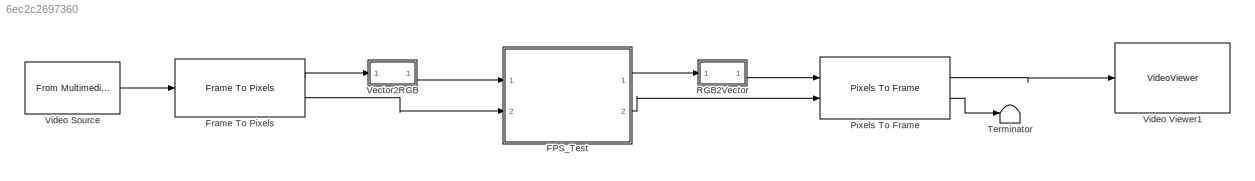
MODEL slx_6ec2c2697360
KIND model
CONFIG AbsTol = auto
CONFIG EnableMultiTasking = off
CONFIG FixedStep = auto
CONFIG InitFcn = Ts = 1e-3;\nTs_240p = 402*324*Ts;\nTs_480p = 525*800*Ts;\n\n
CONFIG MaxStep = auto
CONFIG MinStep = auto
CONFIG RelTol = 1e-3
CONFIG SampleTimeConstraint = Unconstrained
CONFIG Solver = FixedStepDiscrete
CONFIG SolverName = FixedStepDiscrete
CONFIG StartTime = 0.0
CONFIG StopTime = Ts_240p*20
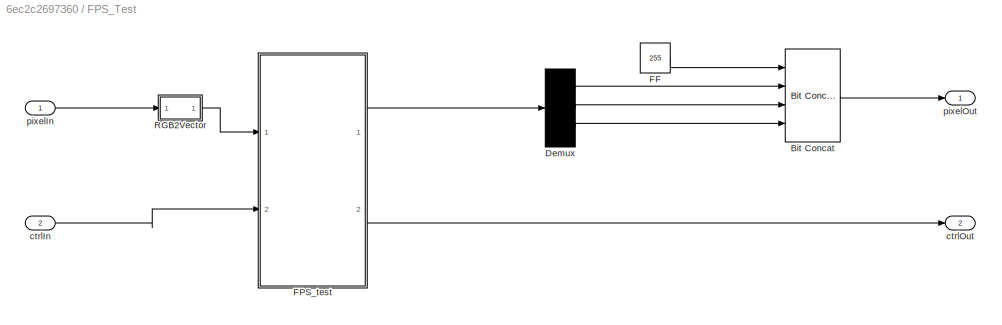
BLOCK [SubSystem] FPS_Test
  Ports = [2, 2]
  RequestExecContextInheritance = off
  TreatAsAtomicUnit = on
  Variant = off
BLOCK [Reference] FPS_Test/Bit Concat  REF=hdlsllib/Logic and Bit
Operations/Bit Concat
  Ports = [4, 1]
  SourceBlock = hdlsllib/Logic and Bit\nOperations/Bit Concat
  SourceProductBaseCode = HD
  SourceProductName = HDL Coder
  SourceType = Bit Concat
BLOCK [Demux] FPS_Test/Demux
  DisplayOption = bar
  Outputs = 3
  Ports = [1, 3]
BLOCK [Constant] FPS_Test/FF
  OutDataTypeStr = uint8
  SampleTime = Ts
  Value = 255
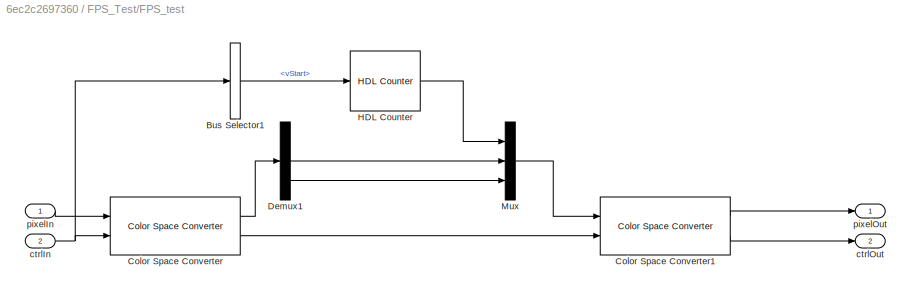
BLOCK [SubSystem] FPS_Test/FPS_test
  Ports = [2, 2]
  RequestExecContextInheritance = off
  TreatAsAtomicUnit = on
  Variant = off
BLOCK [BusSelector] FPS_Test/FPS_test/Bus Selector1
  OutputAsBus = off
  OutputSignals = vStart
  Ports = [1, 1]
BLOCK [Reference] FPS_Test/FPS_test/Color Space Converter  REF=visionhdlconversions/Color Space Converter
  Ports = [2, 2]
  SourceBlock = visionhdlconversions/Color Space Converter
  SourceProductBaseCode = VT
  SourceProductName = Vision HDL Toolbox
  SourceType = Color Space Converter
BLOCK [Reference] FPS_Test/FPS_test/Color Space Converter1  REF=visionhdlconversions/Color Space Converter
  Ports = [2, 2]
  SourceBlock = visionhdlconversions/Color Space Converter
  SourceProductBaseCode = VT
  SourceProductName = Vision HDL Toolbox
  SourceType = Color Space Converter
BLOCK [Demux] FPS_Test/FPS_test/Demux1
  DisplayOption = bar
  Outputs = 3
  Ports = [1, 3]
BLOCK [Reference] FPS_Test/FPS_test/HDL Counter  REF=hdlsllib/Sources/HDL Counter
  Ports = [1, 1]
  SourceBlock = hdlsllib/Sources/HDL Counter
  SourceProductBaseCode = HD
  SourceProductName = HDL Coder
  SourceType = HDL Counter
BLOCK [Mux] FPS_Test/FPS_test/Mux
  DisplayOption = bar
  Inputs = 3
  Ports = [3, 1]
BLOCK [Inport] FPS_Test/FPS_test/ctrlIn
  IconDisplay = Port number
  Port = 2
BLOCK [Outport] FPS_Test/FPS_test/ctrlOut
  IconDisplay = Port number
  Port = 2
BLOCK [Inport] FPS_Test/FPS_test/pixelIn
  IconDisplay = Port number
BLOCK [Outport] FPS_Test/FPS_test/pixelOut
  IconDisplay = Port number
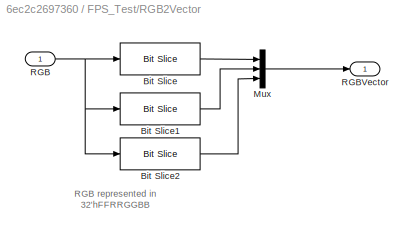
BLOCK [SubSystem] FPS_Test/RGB2Vector
  Ports = [1, 1]
  RequestExecContextInheritance = off
  ShowPortLabels = none
  Variant = off
BLOCK [Reference] FPS_Test/RGB2Vector/Bit Slice  REF=hdlsllib/Logic and Bit
Operations/Bit Slice
  Ports = [1, 1]
  SourceBlock = hdlsllib/Logic and Bit\nOperations/Bit Slice
  SourceProductBaseCode = HD
  SourceProductName = HDL Coder
  SourceType = Bit Slice
BLOCK [Reference] FPS_Test/RGB2Vector/Bit Slice1  REF=hdlsllib/Logic and Bit
Operations/Bit Slice
  Ports = [1, 1]
  SourceBlock = hdlsllib/Logic and Bit\nOperations/Bit Slice
  SourceProductBaseCode = HD
  SourceProductName = HDL Coder
  SourceType = Bit Slice
BLOCK [Reference] FPS_Test/RGB2Vector/Bit Slice2  REF=hdlsllib/Logic and Bit
Operations/Bit Slice
  Ports = [1, 1]
  SourceBlock = hdlsllib/Logic and Bit\nOperations/Bit Slice
  SourceProductBaseCode = HD
  SourceProductName = HDL Coder
  SourceType = Bit Slice
BLOCK [Mux] FPS_Test/RGB2Vector/Mux
  DisplayOption = bar
  Inputs = 3
  Ports = [3, 1]
BLOCK [Inport] FPS_Test/RGB2Vector/RGB
  IconDisplay = Port number
BLOCK [Outport] FPS_Test/RGB2Vector/RGBVector
  IconDisplay = Port number
BLOCK [Inport] FPS_Test/ctrlIn
  IconDisplay = Port number
  Port = 2
BLOCK [Outport] FPS_Test/ctrlOut
  IconDisplay = Port number
  Port = 2
BLOCK [Inport] FPS_Test/pixelIn
  IconDisplay = Port number
BLOCK [Outport] FPS_Test/pixelOut
  IconDisplay = Port number
BLOCK [Reference] Frame To Pixels  REF=visionhdlio/Frame To Pixels
  Ports = [1, 2]
  SourceBlock = visionhdlio/Frame To Pixels
  SourceProductBaseCode = VT
  SourceProductName = Vision HDL Toolbox
  SourceType = Frame To Pixels
BLOCK [Reference] Pixels To Frame  REF=visionhdlio/Pixels To Frame
  Ports = [2, 2]
  SourceBlock = visionhdlio/Pixels To Frame
  SourceProductBaseCode = VT
  SourceProductName = Vision HDL Toolbox
  SourceType = Pixels To Frame
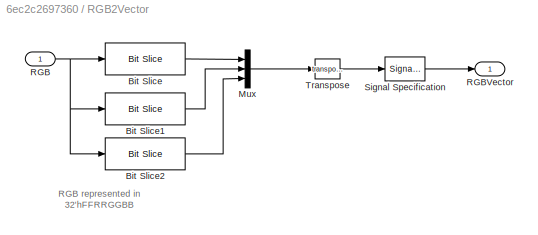
BLOCK [SubSystem] RGB2Vector
  Ports = [1, 1]
  RequestExecContextInheritance = off
  ShowPortLabels = none
  Variant = off
BLOCK [Reference] RGB2Vector/Bit Slice  REF=hdlsllib/Logic and Bit
Operations/Bit Slice
  Ports = [1, 1]
  SourceBlock = hdlsllib/Logic and Bit\nOperations/Bit Slice
  SourceProductBaseCode = HD
  SourceProductName = HDL Coder
  SourceType = Bit Slice
BLOCK [Reference] RGB2Vector/Bit Slice1  REF=hdlsllib/Logic and Bit
Operations/Bit Slice
  Ports = [1, 1]
  SourceBlock = hdlsllib/Logic and Bit\nOperations/Bit Slice
  SourceProductBaseCode = HD
  SourceProductName = HDL Coder
  SourceType = Bit Slice
BLOCK [Reference] RGB2Vector/Bit Slice2  REF=hdlsllib/Logic and Bit
Operations/Bit Slice
  Ports = [1, 1]
  SourceBlock = hdlsllib/Logic and Bit\nOperations/Bit Slice
  SourceProductBaseCode = HD
  SourceProductName = HDL Coder
  SourceType = Bit Slice
BLOCK [Mux] RGB2Vector/Mux
  DisplayOption = bar
  Inputs = 3
  Ports = [3, 1]
BLOCK [Inport] RGB2Vector/RGB
  IconDisplay = Port number
BLOCK [Outport] RGB2Vector/RGBVector
  IconDisplay = Port number
BLOCK [SignalSpecification] RGB2Vector/Signal Specification
  SignalType = real
BLOCK [Math] RGB2Vector/Transpose
  Operator = transpose
  Ports = [1, 1]
BLOCK [Terminator] Terminator
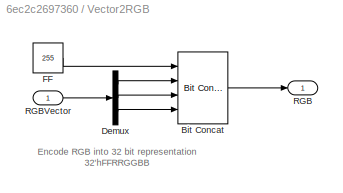
BLOCK [SubSystem] Vector2RGB
  Ports = [1, 1]
  RequestExecContextInheritance = off
  ShowPortLabels = none
  Variant = off
BLOCK [Reference] Vector2RGB/Bit Concat  REF=hdlsllib/Logic and Bit
Operations/Bit Concat
  Ports = [4, 1]
  SourceBlock = hdlsllib/Logic and Bit\nOperations/Bit Concat
  SourceProductBaseCode = HD
  SourceProductName = HDL Coder
  SourceType = Bit Concat
BLOCK [Demux] Vector2RGB/Demux
  DisplayOption = bar
  Outputs = 3
  Ports = [1, 3]
BLOCK [Constant] Vector2RGB/FF
  OutDataTypeStr = uint8
  SampleTime = Ts
  Value = 255
BLOCK [Outport] Vector2RGB/RGB
  IconDisplay = Port number
BLOCK [Inport] Vector2RGB/RGBVector
  IconDisplay = Port number
BLOCK [Reference] Video Source  REF=dspvision/From Multimedia File
  Ports = [0, 1]
  SourceBlock = dspvision/From Multimedia File
  SourceProductBaseCode = VP
  SourceProductName = Computer Vision System Toolbox
  SourceType = From Multimedia File
BLOCK [VideoViewer] Video Viewer1
  FigPos = [342.6 675.6 498.4 402.4]
  Ports = [1]
  ScopeSpecificationString = vipscopes.VideoViewerScopeCfg('CurrentConfiguration', extmgr.ConfigurationSet(extmgr.Configuration('Core','General UI',true),extmgr.Configuration('Core','Source UI',true),extmgr.Configuration('Sources','WiredSimulink',true),extmgr.Configuration('Sources','Streaming',false),extmgr.Configuration('Sources','SimulinkEvent',false),extmgr.Configuration('Sources','Workspace',false),extmgr.Configuration('...<+1285ch>
  colormapValue = gray(256)
ANNOTATION FPS_Test/RGB2Vector: RGB represented in 32'hFFRRGGBB
ANNOTATION RGB2Vector: RGB represented in 32'hFFRRGGBB
ANNOTATION Vector2RGB: Encode RGB into 32 bit representation 32'hFFRRGGBB
LINE FPS_Test/Bit Concat:1 -> FPS_Test/pixelOut:1
LINE FPS_Test/Demux:1 -> FPS_Test/Bit Concat:2
LINE FPS_Test/Demux:2 -> FPS_Test/Bit Concat:3
LINE FPS_Test/Demux:3 -> FPS_Test/Bit Concat:4
LINE FPS_Test/FF:1 -> FPS_Test/Bit Concat:1
LINE FPS_Test/FPS_test/Bus Selector1:1 -> FPS_Test/FPS_test/HDL Counter:1
LINE FPS_Test/FPS_test/Color Space Converter1:1 -> FPS_Test/FPS_test/pixelOut:1
LINE FPS_Test/FPS_test/Color Space Converter1:2 -> FPS_Test/FPS_test/ctrlOut:1
LINE FPS_Test/FPS_test/Color Space Converter:1 -> FPS_Test/FPS_test/Demux1:1
LINE FPS_Test/FPS_test/Color Space Converter:2 -> FPS_Test/FPS_test/Color Space Converter1:2
LINE FPS_Test/FPS_test/Demux1:2 -> FPS_Test/FPS_test/Mux:2
LINE FPS_Test/FPS_test/Demux1:3 -> FPS_Test/FPS_test/Mux:3
LINE FPS_Test/FPS_test/HDL Counter:1 -> FPS_Test/FPS_test/Mux:1
LINE FPS_Test/FPS_test/Mux:1 -> FPS_Test/FPS_test/Color Space Converter1:1
NET FPS_Test/FPS_test/ctrlIn:1 -> FPS_Test/FPS_test/Bus Selector1:1, FPS_Test/FPS_test/Color Space Converter:2
LINE FPS_Test/FPS_test/pixelIn:1 -> FPS_Test/FPS_test/Color Space Converter:1
LINE FPS_Test/FPS_test:1 -> FPS_Test/Demux:1
LINE FPS_Test/FPS_test:2 -> FPS_Test/ctrlOut:1
LINE FPS_Test/RGB2Vector/Bit Slice1:1 -> FPS_Test/RGB2Vector/Mux:2
LINE FPS_Test/RGB2Vector/Bit Slice2:1 -> FPS_Test/RGB2Vector/Mux:3
LINE FPS_Test/RGB2Vector/Bit Slice:1 -> FPS_Test/RGB2Vector/Mux:1
LINE FPS_Test/RGB2Vector/Mux:1 -> FPS_Test/RGB2Vector/RGBVector:1
NET FPS_Test/RGB2Vector/RGB:1 -> FPS_Test/RGB2Vector/Bit Slice1:1, FPS_Test/RGB2Vector/Bit Slice2:1, FPS_Test/RGB2Vector/Bit Slice:1
LINE FPS_Test/RGB2Vector:1 -> FPS_Test/FPS_test:1
LINE FPS_Test/ctrlIn:1 -> FPS_Test/FPS_test:2
LINE FPS_Test/pixelIn:1 -> FPS_Test/RGB2Vector:1
LINE FPS_Test:1 -> RGB2Vector:1
LINE FPS_Test:2 -> Pixels To Frame:2
LINE Frame To Pixels:1 -> Vector2RGB:1
LINE Frame To Pixels:2 -> FPS_Test:2
LINE Pixels To Frame:1 -> Video Viewer1:1
LINE Pixels To Frame:2 -> Terminator:1
LINE RGB2Vector/Bit Slice1:1 -> RGB2Vector/Mux:2
LINE RGB2Vector/Bit Slice2:1 -> RGB2Vector/Mux:3
LINE RGB2Vector/Bit Slice:1 -> RGB2Vector/Mux:1
LINE RGB2Vector/Mux:1 -> RGB2Vector/Transpose:1
NET RGB2Vector/RGB:1 -> RGB2Vector/Bit Slice1:1, RGB2Vector/Bit Slice2:1, RGB2Vector/Bit Slice:1
LINE RGB2Vector/Signal Specification:1 -> RGB2Vector/RGBVector:1
LINE RGB2Vector/Transpose:1 -> RGB2Vector/Signal Specification:1
LINE RGB2Vector:1 -> Pixels To Frame:1
LINE Vector2RGB/Bit Concat:1 -> Vector2RGB/RGB:1
LINE Vector2RGB/Demux:1 -> Vector2RGB/Bit Concat:2
LINE Vector2RGB/Demux:2 -> Vector2RGB/Bit Concat:3
LINE Vector2RGB/Demux:3 -> Vector2RGB/Bit Concat:4
LINE Vector2RGB/FF:1 -> Vector2RGB/Bit Concat:1
LINE Vector2RGB/RGBVector:1 -> Vector2RGB/Demux:1
LINE Vector2RGB:1 -> FPS_Test:1
LINE Video Source:1 -> Frame To Pixels:1
note: NET lines group one-source signal fan-out (src -> all destinations, sorted); 1:1 wires keep LINE
